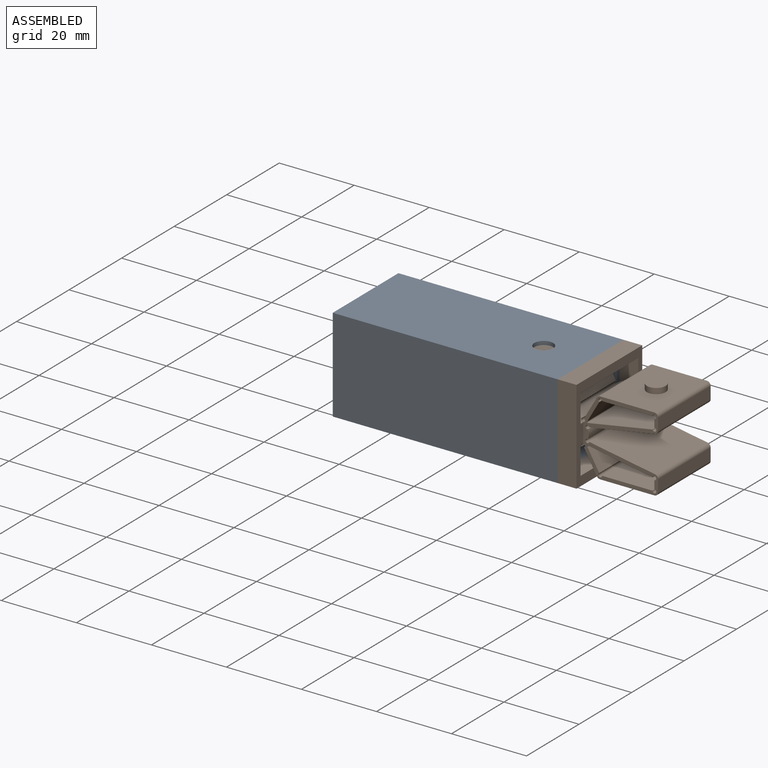
[diagram: assembled view]
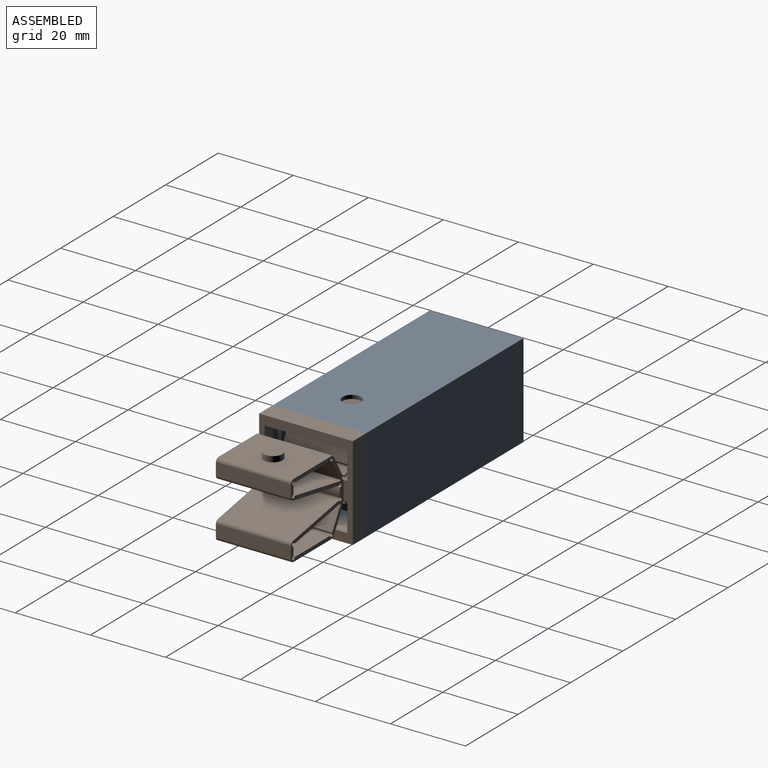
[diagram: assembled view, second angle]
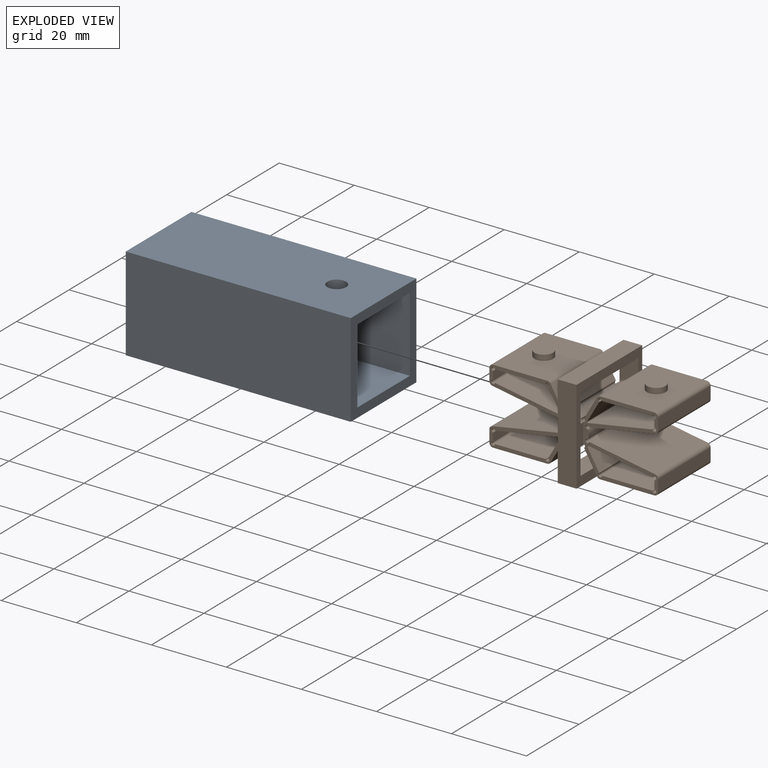
[diagram: exploded view]
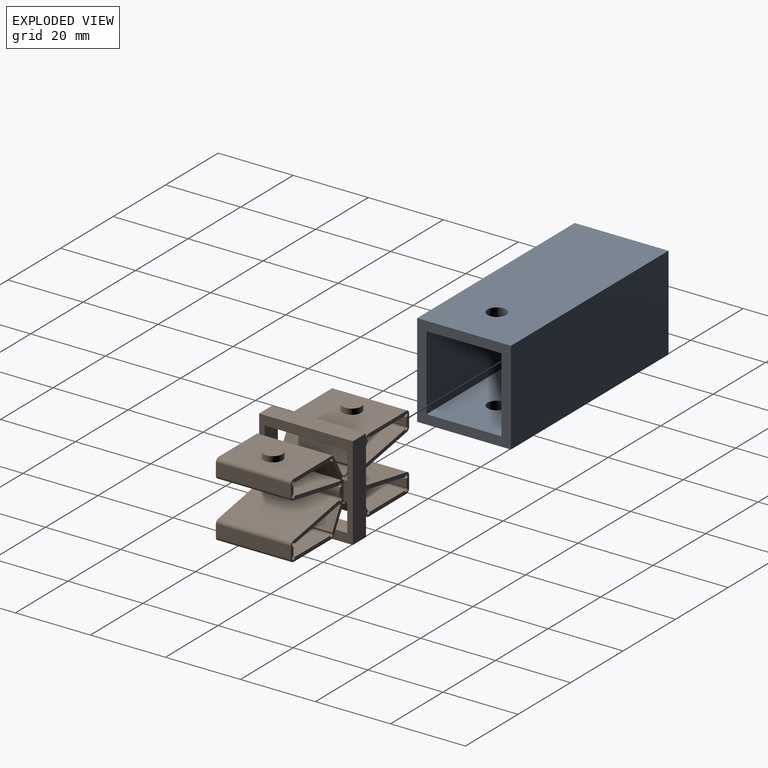
[diagram: exploded view, second angle]
ASSEMBLY  parts=2 mates=2
PART A: 12 faces, bbox 60x25x25 mm
  f0: plane 60x25mm, normal (0,0,-1), area 1480.4mm2, adj f1,f7,f8,f9,f11
  f1: plane 60x25mm, normal (0,1,0), area 1500mm2, adj f0,f2,f8,f9
  f2: plane 60x25mm, normal (0,0,1), area 1480.4mm2, adj f1,f7,f8,f9,f10
  f3: plane 60x20mm, normal (0,-1,0), area 1200mm2, adj f4,f6,f8,f9
  f4: plane 60x20mm, normal (0,0,1), area 1180.4mm2, adj f3,f5,f8,f9,f11
  f5: plane 60x20mm, normal (0,1,0), area 1200mm2, adj f4,f6,f8,f9
  f6: plane 60x20mm, normal (0,0,-1), area 1180.4mm2, adj f3,f5,f8,f9,f10
  f7: plane 60x25mm, normal (0,-1,0), area 1500mm2, adj f0,f2,f8,f9
  f8: plane 25x25mm, normal (1,0,0), area 225mm2, adj f0,f1,f2,f3,f4,f5,f6,f7
  f9: plane 25x25mm, normal (-1,0,0), area 225mm2, adj f0,f1,f2,f3,f4,f5,f6,f7
  f10: cylinder r=2.5mm len=5mm, axis (0,0,1), area 39.3mm2, adj f2,f6
  f11: cylinder r=2.5mm len=5mm, axis (0,0,1), area 39.3mm2, adj f0,f4
PART B: 116 faces, bbox 45x25x25 mm
  f0: plane 25x25mm, normal (1,0,0), area 195.2mm2, adj f7,f8,f9,f10,f11,f12,f16,f17
  f1: plane 25x25mm, normal (-1,0,0), area 195.2mm2, adj f4,f5,f6,f13,f14,f15,f18,f19
  f2: cylinder r=4mm len=20mm, axis (0,-1,0), area 88mm2, adj f10,f13,f104,f106
  f3: cylinder r=4mm len=20mm, axis (0,-1,0), area 88mm2, adj f4,f7,f110,f112
  f4: cylinder r=0.5mm len=21mm, axis (0,-1,0), area 48.5mm2, adj f1,f3,f18,f19,f29,f110,f112,f114
  f5: cylinder r=0.5mm len=0.79mm, axis (0,-1,0), area 0.2mm2, adj f1,f76,f112,f115
  f6: cylinder r=0.5mm len=0.79mm, axis (0,-1,0), area 0.2mm2, adj f1,f77,f110,f114
  f7: cylinder r=0.5mm len=21mm, axis (0,-1,0), area 48.5mm2, adj f0,f3,f16,f17,f71,f110,f111,f112
  f8: cylinder r=0.5mm len=0.79mm, axis (0,-1,0), area 0.2mm2, adj f0,f76,f112,f113
  f9: cylinder r=0.5mm len=0.79mm, axis (0,-1,0), area 0.2mm2, adj f0,f77,f110,f111
  f10: cylinder r=0.5mm len=21mm, axis (0,-1,0), area 48.5mm2, adj f0,f2,f16,f17,f28,f104,f106,f108
  f11: cylinder r=0.5mm len=0.79mm, axis (0,-1,0), area 0.2mm2, adj f0,f78,f106,f109
  f12: cylinder r=0.5mm len=0.79mm, axis (0,-1,0), area 0.2mm2, adj f0,f79,f104,f108
  f13: cylinder r=0.5mm len=21mm, axis (0,-1,0), area 48.5mm2, adj f1,f2,f18,f19,f69,f104,f105,f106
  f14: cylinder r=0.5mm len=0.79mm, axis (0,-1,0), area 0.2mm2, adj f1,f78,f106,f107
  f15: cylinder r=0.5mm len=0.79mm, axis (0,-1,0), area 0.2mm2, adj f1,f79,f104,f105
  f16: plane 20x20mm, normal (0,1,0), area 92.5mm2, adj f0,f7,f10,f22,f23,f28,f30,f31
  f17: plane 20x20mm, normal (0,-1,0), area 92.5mm2, adj f0,f7,f10,f22,f23,f28,f30,f31
  f18: plane 20x20mm, normal (0,-1,0), area 92.5mm2, adj f1,f4,f13,f20,f21,f24,f25,f26
  f19: plane 20x20mm, normal (0,1,0), area 92.5mm2, adj f1,f4,f13,f20,f21,f24,f25,f26
  f20: cylinder r=4mm len=20mm, axis (0,1,0), area 49mm2, adj f18,f19,f98,f99
  f21: plane 20x17.55mm, normal (-0.17,0,0.98), area 356.4mm2, adj f18,f19,f56,f98
  f22: cylinder r=4mm len=20mm, axis (0,1,0), area 49mm2, adj f16,f17,f96,f97
  f23: plane 20x17.55mm, normal (0.17,0,-0.98), area 356.4mm2, adj f16,f17,f60,f96
  f24: plane 20x17.1mm, normal (0.17,0,-0.98), area 347.3mm2, adj f18,f19,f92,f100
  f25: plane 20x2.16mm, normal (1,0,0), area 43.2mm2, adj f18,f19,f91,f92
  f26: plane 20x13.45mm, normal (0,0,1), area 269mm2, adj f18,f19,f90,f91
  f27: plane 20x5.46mm, normal (-0.87,0,0.5), area 126.1mm2, adj f18,f19,f90,f100
  f28: plane 20x5.94mm, normal (-0.87,0,0.5), area 137.3mm2, adj f10,f16,f17,f83
  f29: plane 20x5.94mm, normal (0.87,0,-0.5), area 137.3mm2, adj f4,f18,f19,f81
  f30: plane 20x13.45mm, normal (0,0,-1), area 269mm2, adj f16,f17,f88,f89
  f31: plane 20x5.46mm, normal (0.87,0,-0.5), area 126.1mm2, adj f16,f17,f89,f102
  f32: plane 20x17.1mm, normal (-0.17,0,0.98), area 347.3mm2, adj f16,f17,f87,f102
  f33: plane 20x2.16mm, normal (-1,0,0), area 43.2mm2, adj f16,f17,f87,f88
  f34: plane 20x14.45mm, normal (0,0,-1), area 269.4mm2, adj f16,f17,f54,f58,f80
  f35: plane 20x14.45mm, normal (0,0,1), area 269.4mm2, adj f16,f17,f50,f61,f83
  f36: plane 20x17.55mm, normal (-0.17,0,-0.98), area 356.4mm2, adj f18,f19,f63,f99
  f37: plane 20x3.16mm, normal (-1,0,0), area 63.2mm2, adj f18,f19,f56,f57
  f38: plane 20x14.45mm, normal (0,0,-1), area 269.4mm2, adj f18,f19,f52,f57,f81
  f39: plane 25x5mm, normal (0,0,-1), area 125mm2, adj f0,f1,f46,f47
  f40: plane 20x3.16mm, normal (1,0,0), area 63.2mm2, adj f16,f17,f58,f59
  f41: plane 20x17.55mm, normal (0.17,0,0.98), area 356.4mm2, adj f16,f17,f59,f97
  f42: plane 20x3.16mm, normal (1,0,0), area 63.2mm2, adj f16,f17,f60,f61
  f43: plane 25x5mm, normal (0,0,1), area 125mm2, adj f0,f1,f46,f47
  f44: plane 20x14.45mm, normal (0,0,1), area 269.4mm2, adj f18,f19,f48,f62,f82
  f45: plane 20x3.16mm, normal (-1,0,0), area 63.2mm2, adj f18,f19,f62,f63
  f46: plane 25x5mm, normal (0,-1,0), area 125mm2, adj f0,f1,f39,f43
  f47: plane 25x5mm, normal (0,1,0), area 125mm2, adj f0,f1,f39,f43
  f48: cylinder r=2.5mm len=5mm, axis (0,0,-1), area 23.6mm2, adj f44,f49
  f49: plane 5x5mm, normal (0,0,1), area 19.6mm2, adj f48
  f50: cylinder r=2.5mm len=5mm, axis (0,0,-1), area 23.6mm2, adj f35,f51
  f51: plane 5x5mm, normal (0,0,1), area 19.6mm2, adj f50
  f52: cylinder r=2.5mm len=5mm, axis (0,0,1), area 23.6mm2, adj f38,f53
  f53: plane 5x5mm, normal (0,0,-1), area 19.6mm2, adj f52
  f54: cylinder r=2.5mm len=5mm, axis (0,0,1), area 23.6mm2, adj f34,f55
  f55: plane 5x5mm, normal (0,0,-1), area 19.6mm2, adj f54
  f56: cylinder r=1mm len=20mm, axis (0,1,0), area 27.9mm2, adj f18,f19,f21,f37
  f57: cylinder r=1mm len=20mm, axis (0,-1,0), area 31.4mm2, adj f18,f19,f37,f38
  f58: cylinder r=1mm len=20mm, axis (0,1,0), area 31.4mm2, adj f16,f17,f34,f40
  f59: cylinder r=1mm len=20mm, axis (0,1,0), area 27.9mm2, adj f16,f17,f40,f41
  f60: cylinder r=1mm len=20mm, axis (0,1,0), area 27.9mm2, adj f16,f17,f23,f42
  f61: cylinder r=1mm len=20mm, axis (0,1,0), area 31.4mm2, adj f16,f17,f35,f42
  f62: cylinder r=1mm len=20mm, axis (0,-1,0), area 31.4mm2, adj f18,f19,f44,f45
  f63: cylinder r=1mm len=20mm, axis (0,1,0), area 27.9mm2, adj f18,f19,f36,f45
  f64: plane 20x13.45mm, normal (0,0,-1), area 269mm2, adj f18,f19,f93,f95
  f65: plane 20x2.16mm, normal (1,0,0), area 43.2mm2, adj f18,f19,f94,f95
  f66: plane 20x17.1mm, normal (0.17,0,0.98), area 347.3mm2, adj f18,f19,f94,f103
  f67: plane 20x5.46mm, normal (-0.87,0,-0.5), area 126.1mm2, adj f18,f19,f93,f103
  f68: plane 22x5mm, normal (0,0,-1), area 110mm2, adj f0,f1,f78,f79
  f69: plane 20x5.94mm, normal (0.87,0,0.5), area 137.3mm2, adj f13,f18,f19,f82
  f70: plane 22x5mm, normal (0,0,1), area 110mm2, adj f0,f1,f76,f77
  f71: plane 20x5.94mm, normal (-0.87,0,-0.5), area 137.3mm2, adj f7,f16,f17,f80
  f72: plane 20x13.45mm, normal (0,0,1), area 269mm2, adj f16,f17,f84,f86
  f73: plane 20x2.16mm, normal (-1,0,0), area 43.2mm2, adj f16,f17,f85,f86
  f74: plane 20x17.1mm, normal (-0.17,0,-0.98), area 347.3mm2, adj f16,f17,f85,f101
  f75: plane 20x5.46mm, normal (0.87,0,0.5), area 126.1mm2, adj f16,f17,f84,f101
  f76: plane 7.38x5mm, normal (0,1,0), area 31.9mm2, adj f0,f1,f5,f8,f70,f112
  f77: plane 7.38x5mm, normal (0,-1,0), area 31.9mm2, adj f0,f1,f6,f9,f70,f110
  f78: plane 7.38x5mm, normal (0,1,0), area 31.9mm2, adj f0,f1,f11,f14,f68,f106
  f79: plane 7.38x5mm, normal (0,-1,0), area 31.9mm2, adj f0,f1,f12,f15,f68,f104
  f80: cylinder r=1mm len=20mm, axis (0,1,0), area 20.9mm2, adj f16,f17,f34,f71
  f81: cylinder r=1mm len=20mm, axis (0,-1,0), area 20.9mm2, adj f18,f19,f29,f38
  f82: cylinder r=1mm len=20mm, axis (0,-1,0), area 20.9mm2, adj f18,f19,f44,f69
  f83: cylinder r=1mm len=20mm, axis (0,1,0), area 20.9mm2, adj f16,f17,f28,f35
  f84: cylinder r=0.5mm len=20mm, axis (0,-1,0), area 41.9mm2, adj f16,f17,f72,f75
  f85: cylinder r=0.5mm len=20mm, axis (0,-1,0), area 45.4mm2, adj f16,f17,f73,f74
  f86: cylinder r=0.5mm len=20mm, axis (0,-1,0), area 47.1mm2, adj f16,f17,f72,f73
  f87: cylinder r=0.5mm len=20mm, axis (0,-1,0), area 45.4mm2, adj f16,f17,f32,f33
  f88: cylinder r=0.5mm len=20mm, axis (0,-1,0), area 47.1mm2, adj f16,f17,f30,f33
  f89: cylinder r=0.5mm len=20mm, axis (0,-1,0), area 41.9mm2, adj f16,f17,f30,f31
  f90: cylinder r=0.5mm len=20mm, axis (0,-1,0), area 41.9mm2, adj f18,f19,f26,f27
  f91: cylinder r=0.5mm len=20mm, axis (0,-1,0), area 47.1mm2, adj f18,f19,f25,f26
  f92: cylinder r=0.5mm len=20mm, axis (0,-1,0), area 45.4mm2, adj f18,f19,f24,f25
  f93: cylinder r=0.5mm len=20mm, axis (0,-1,0), area 41.9mm2, adj f18,f19,f64,f67
  f94: cylinder r=0.5mm len=20mm, axis (0,-1,0), area 45.4mm2, adj f18,f19,f65,f66
  f95: cylinder r=0.5mm len=20mm, axis (0,-1,0), area 47.1mm2, adj f18,f19,f64,f65
  f96: cylinder r=0.5mm len=20mm, axis (0,-1,0), area 49.1mm2, adj f16,f17,f22,f23
  f97: cylinder r=0.5mm len=20mm, axis (0,-1,0), area 49.1mm2, adj f16,f17,f22,f41
  f98: cylinder r=0.5mm len=20mm, axis (0,-1,0), area 49.1mm2, adj f18,f19,f20,f21
  f99: cylinder r=0.5mm len=20mm, axis (0,-1,0), area 49.1mm2, adj f18,f19,f20,f36
  f100: cylinder r=0.25mm len=20mm, axis (0,-1,0), area 11.3mm2, adj f18,f19,f24,f27
  f101: cylinder r=0.25mm len=20mm, axis (0,-1,0), area 11.3mm2, adj f16,f17,f74,f75
  f102: cylinder r=0.25mm len=20mm, axis (0,-1,0), area 11.3mm2, adj f16,f17,f31,f32
  f103: cylinder r=0.25mm len=20mm, axis (0,-1,0), area 11.3mm2, adj f18,f19,f66,f67
  f104: torus R=4mm, axis (0,1,0), area 6.8mm2, adj f2,f10,f12,f13,f15,f79
  f105: torus R=4mm, axis (0,1,0), area 0.2mm2, adj f1,f13,f15
  f106: torus R=4mm, axis (0,1,0), area 6.8mm2, adj f2,f10,f11,f13,f14,f78
  f107: torus R=4mm, axis (0,1,0), area 0.2mm2, adj f1,f13,f14
  f108: torus R=4mm, axis (0,1,0), area 0.2mm2, adj f0,f10,f12
  f109: torus R=4mm, axis (0,1,0), area 0.2mm2, adj f0,f10,f11
  f110: torus R=4mm, axis (0,1,0), area 6.8mm2, adj f3,f4,f6,f7,f9,f77
  f111: torus R=4mm, axis (0,1,0), area 0.2mm2, adj f0,f7,f9
  f112: torus R=4mm, axis (0,1,0), area 6.8mm2, adj f3,f4,f5,f7,f8,f76
  f113: torus R=4mm, axis (0,1,0), area 0.2mm2, adj f0,f7,f8
  f114: torus R=4mm, axis (0,1,0), area 0.2mm2, adj f1,f4,f6
  f115: torus R=4mm, axis (0,1,0), area 0.2mm2, adj f1,f4,f5
PLACE A t=(-63.55,1.97,-11.31)mm
PLACE B t=(-31.05,-10.53,1.19)mm
MATE parallel B.f46 <-> A.f7  axis (0,-1,0) through (-28.55,-23.03,1.19)mm
MATE parallel B.f1 <-> A.f8  axis (-1,0,0) through (-33.55,-10.53,1.19)mm
